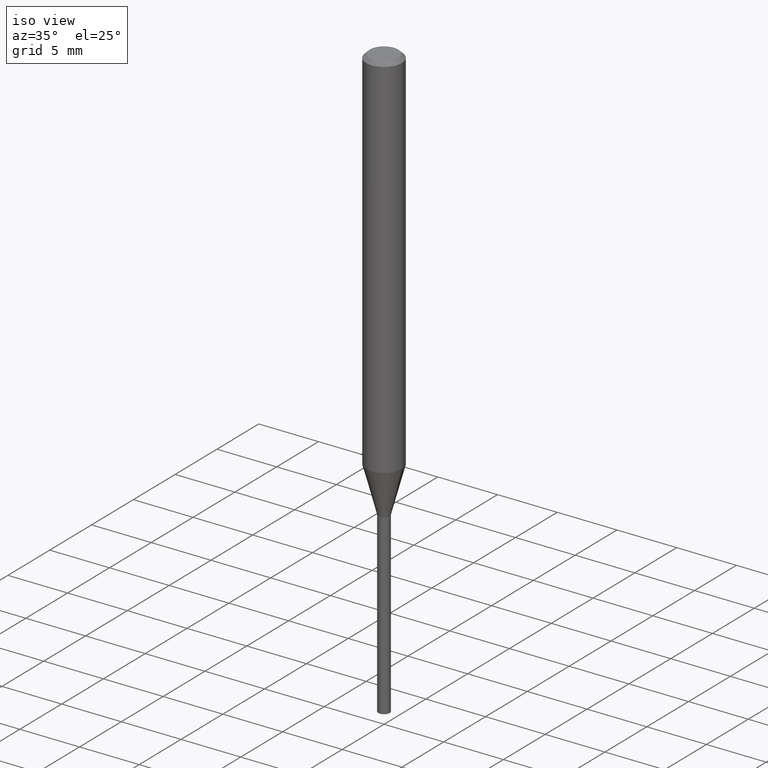
[diagram: clean part render]
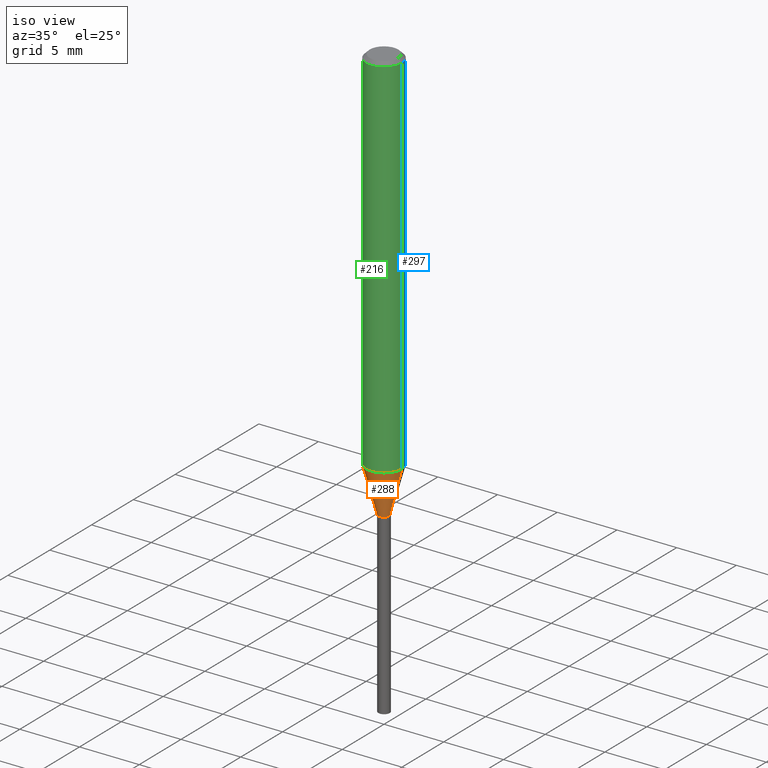
[diagram: same view with three faces highlighted in distinct colors, each labeled with its STEP entity id]
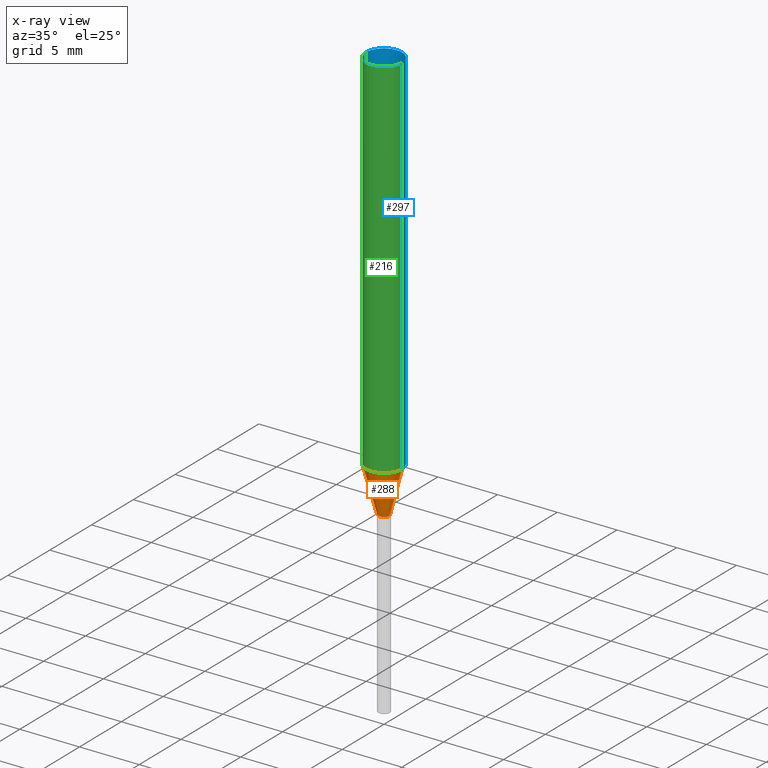
[diagram: x-ray of the same camera — body ghosted, the three highlighted faces saturated]
A machine part, iso view with three faces highlighted in distinct colors.
The next image is the same camera in x-ray (body ghosted, the three faces saturated) — at least one of them is partly hidden behind the body in this view.
Their STEP definitions:

[orange] entity #288 — the highlighted conical surface has half-angle 15 deg.
#4 = AXIS2_PLACEMENT_3D ( 'NONE', #37, #148, #307 ) ;
#14 = ORIENTED_EDGE ( 'NONE', *, *, #304, .F. ) ;
#27 = CIRCLE ( 'NONE', #308, 0.05905000000000014404 ) ;
#33 = EDGE_CURVE ( 'NONE', #54, #144, #468, .T. ) ;
#37 = CARTESIAN_POINT ( 'NONE',  ( 3.355916842727862365E-29, -4.791359841294448810E-15, -1.372300000000000075 ) ) ;
#54 = VERTEX_POINT ( 'NONE', #171 ) ;
#67 = CIRCLE ( 'NONE', #401, 0.01870000000000003604 ) ;
#80 = DIRECTION ( 'NONE',  ( 1.000000000000000000, -6.982962677686261977E-15, 0.000000000000000000 ) ) ;
#85 = LINE ( 'NONE', #239, #375 ) ;
#89 = DIRECTION ( 'NONE',  ( -2.445468806185136597E-29, 3.491481338843145583E-15, 1.000000000000000000 ) ) ;
#95 = ORIENTED_EDGE ( 'NONE', *, *, #342, .F. ) ;
#117 = CARTESIAN_POINT ( 'NONE',  ( 0.01870000000000003604, -4.921941243367182799E-15, -1.372300000000000075 ) ) ;
#144 = VERTEX_POINT ( 'NONE', #362 ) ;
#148 = DIRECTION ( 'NONE',  ( -2.445468806185136597E-29, 3.491481338843145583E-15, 1.000000000000000000 ) ) ;
#171 = CARTESIAN_POINT ( 'NONE',  ( 0.01870000000000003604, -4.921941243367182799E-15, -1.372300000000000075 ) ) ;
#191 = DIRECTION ( 'NONE',  ( -2.445468806185136597E-29, 3.491481338843145583E-15, 1.000000000000000000 ) ) ;
#212 = ORIENTED_EDGE ( 'NONE', *, *, #33, .T. ) ;
#239 = CARTESIAN_POINT ( 'NONE',  ( -0.01870000000000003604, -4.658488349707310510E-15, -1.372300000000000075 ) ) ;
#263 = FACE_OUTER_BOUND ( 'NONE', #312, .T. ) ;
#271 = CARTESIAN_POINT ( 'NONE',  ( -0.01870000000000003604, -4.667391627121360572E-15, -1.372300000000000075 ) ) ;
#279 = DIRECTION ( 'NONE',  ( 0.2588190451025213501, 1.565188264969621968E-15, 0.9659258262890682012 ) ) ;
#288 = ADVANCED_FACE ( 'NONE', ( #263 ), #314, .T. ) ;
#301 = VERTEX_POINT ( 'NONE', #271 ) ;
#304 = EDGE_CURVE ( 'NONE', #301, #354, #85, .T. ) ;
#307 = DIRECTION ( 'NONE',  ( 1.000000000000000000, -6.982962677686261977E-15, 0.000000000000000000 ) ) ;
#308 = AXIS2_PLACEMENT_3D ( 'NONE', #429, #191, #384 ) ;
#312 = EDGE_LOOP ( 'NONE', ( #14, #485, #212, #95 ) ) ;
#314 = CONICAL_SURFACE ( 'NONE', #4, 0.01870000000000003604, 0.2617993877991500740 ) ;
#339 = CARTESIAN_POINT ( 'NONE',  ( 3.355916842727862365E-29, -4.791359841294448810E-15, -1.372300000000000075 ) ) ;
#342 = EDGE_CURVE ( 'NONE', #354, #144, #27, .T. ) ;
#345 = EDGE_CURVE ( 'NONE', #301, #54, #67, .T. ) ;
#354 = VERTEX_POINT ( 'NONE', #391 ) ;
#362 = CARTESIAN_POINT ( 'NONE',  ( 0.05905000000000014404, -4.677927722389590125E-15, -1.221711749914595746 ) ) ;
#375 = VECTOR ( 'NONE', #393, 39.37007874015747433 ) ;
#384 = DIRECTION ( 'NONE',  ( 1.000000000000000000, -6.982962677686272233E-15, 0.000000000000000000 ) ) ;
#391 = CARTESIAN_POINT ( 'NONE',  ( -0.05905000000000014404, -3.846008290805875712E-15, -1.221711749914595746 ) ) ;
#393 = DIRECTION ( 'NONE',  ( -0.2588190451025213501, 5.211531920934551042E-15, 0.9659258262890682012 ) ) ;
#401 = AXIS2_PLACEMENT_3D ( 'NONE', #339, #89, #80 ) ;
#429 = CARTESIAN_POINT ( 'NONE',  ( 2.987657974566000511E-29, -4.265583776272215205E-15, -1.221711749914595746 ) ) ;
#449 = VECTOR ( 'NONE', #279, 39.37007874015747433 ) ;
#468 = LINE ( 'NONE', #117, #449 ) ;
#485 = ORIENTED_EDGE ( 'NONE', *, *, #345, .T. ) ;

[blue] entity #297 — the highlighted cylindrical surface (edge-blend (fillet) strip) has radius 1.4999 mm, axis along (-0, 0, 1).
#2 = VERTEX_POINT ( 'NONE', #244 ) ;
#5 = DIRECTION ( 'NONE',  ( -2.445468806185136877E-29, 3.491481338843145188E-15, 1.000000000000000000 ) ) ;
#11 = ORIENTED_EDGE ( 'NONE', *, *, #390, .F. ) ;
#15 = CIRCLE ( 'NONE', #467, 0.05905000000000000526 ) ;
#57 = ORIENTED_EDGE ( 'NONE', *, *, #92, .T. ) ;
#59 = DIRECTION ( 'NONE',  ( -2.445468806185136597E-29, 3.491481338843145583E-15, 1.000000000000000000 ) ) ;
#62 = VECTOR ( 'NONE', #425, 39.37007874015748143 ) ;
#90 = LINE ( 'NONE', #315, #62 ) ;
#92 = EDGE_CURVE ( 'NONE', #354, #2, #90, .T. ) ;
#93 = ORIENTED_EDGE ( 'NONE', *, *, #162, .F. ) ;
#100 = AXIS2_PLACEMENT_3D ( 'NONE', #232, #309, #350 ) ;
#109 = FACE_OUTER_BOUND ( 'NONE', #344, .T. ) ;
#122 = DIRECTION ( 'NONE',  ( -2.445468806185136597E-29, 3.491481338843145583E-15, 1.000000000000000000 ) ) ;
#144 = VERTEX_POINT ( 'NONE', #362 ) ;
#162 = EDGE_CURVE ( 'NONE', #355, #2, #15, .T. ) ;
#232 = CARTESIAN_POINT ( 'NONE',  ( 2.987657974566000511E-29, -4.265583776272215205E-15, -1.221711749914595746 ) ) ;
#233 = AXIS2_PLACEMENT_3D ( 'NONE', #472, #122, #277 ) ;
#242 = CIRCLE ( 'NONE', #100, 0.05905000000000014404 ) ;
#243 = CARTESIAN_POINT ( 'NONE',  ( 0.05905000000000000526, -4.535783407291119586E-16, -0.01181000000000007738 ) ) ;
#244 = CARTESIAN_POINT ( 'NONE',  ( -0.05905000000000000526, -1.733833599975635790E-15, -0.01181000000000007738 ) ) ;
#269 = CYLINDRICAL_SURFACE ( 'NONE', #233, 0.05905000000000007465 ) ;
#277 = DIRECTION ( 'NONE',  ( 1.000000000000000000, -6.982962677686266711E-15, 4.876176775795936353E-29 ) ) ;
#290 = CARTESIAN_POINT ( 'NONE',  ( 2.888098660104665518E-31, -4.123439461173782112E-17, -0.01181000000000007738 ) ) ;
#297 = ADVANCED_FACE ( 'NONE', ( #109 ), #269, .T. ) ;
#305 = EDGE_CURVE ( 'NONE', #144, #354, #242, .T. ) ;
#309 = DIRECTION ( 'NONE',  ( -2.445468806185136597E-29, 3.491481338843145583E-15, 1.000000000000000000 ) ) ;
#315 = CARTESIAN_POINT ( 'NONE',  ( -0.05905000000000007465, 4.195754854663396902E-16, -2.904631170795525395E-30 ) ) ;
#337 = CARTESIAN_POINT ( 'NONE',  ( 0.05905000000000007465, -4.123439461173745750E-16, 2.879382386107504074E-30 ) ) ;
#344 = EDGE_LOOP ( 'NONE', ( #438, #57, #93, #11 ) ) ;
#350 = DIRECTION ( 'NONE',  ( 1.000000000000000000, -6.982962677686272233E-15, 0.000000000000000000 ) ) ;
#354 = VERTEX_POINT ( 'NONE', #391 ) ;
#355 = VERTEX_POINT ( 'NONE', #243 ) ;
#357 = DIRECTION ( 'NONE',  ( 1.000000000000000000, -6.982962677686267499E-15, 0.000000000000000000 ) ) ;
#362 = CARTESIAN_POINT ( 'NONE',  ( 0.05905000000000014404, -4.677927722389590125E-15, -1.221711749914595746 ) ) ;
#390 = EDGE_CURVE ( 'NONE', #144, #355, #397, .T. ) ;
#391 = CARTESIAN_POINT ( 'NONE',  ( -0.05905000000000014404, -3.846008290805875712E-15, -1.221711749914595746 ) ) ;
#397 = LINE ( 'NONE', #337, #430 ) ;
#425 = DIRECTION ( 'NONE',  ( -2.445468806185136877E-29, 3.491481338843145188E-15, 1.000000000000000000 ) ) ;
#430 = VECTOR ( 'NONE', #5, 39.37007874015748143 ) ;
#438 = ORIENTED_EDGE ( 'NONE', *, *, #305, .T. ) ;
#467 = AXIS2_PLACEMENT_3D ( 'NONE', #290, #59, #357 ) ;
#472 = CARTESIAN_POINT ( 'NONE',  ( 0.000000000000000000, 0.000000000000000000, 0.000000000000000000 ) ) ;

[green] entity #216 — the highlighted cylindrical surface (edge-blend (fillet) strip) has radius 1.4999 mm, axis along (-0, 0, 1).
#2 = VERTEX_POINT ( 'NONE', #244 ) ;
#5 = DIRECTION ( 'NONE',  ( -2.445468806185136877E-29, 3.491481338843145188E-15, 1.000000000000000000 ) ) ;
#27 = CIRCLE ( 'NONE', #308, 0.05905000000000014404 ) ;
#39 = ORIENTED_EDGE ( 'NONE', *, *, #471, .F. ) ;
#44 = ORIENTED_EDGE ( 'NONE', *, *, #92, .F. ) ;
#58 = DIRECTION ( 'NONE',  ( 1.000000000000000000, -6.982962677686267499E-15, 0.000000000000000000 ) ) ;
#62 = VECTOR ( 'NONE', #425, 39.37007874015748143 ) ;
#66 = CIRCLE ( 'NONE', #480, 0.05905000000000000526 ) ;
#90 = LINE ( 'NONE', #315, #62 ) ;
#92 = EDGE_CURVE ( 'NONE', #354, #2, #90, .T. ) ;
#126 = ORIENTED_EDGE ( 'NONE', *, *, #342, .T. ) ;
#144 = VERTEX_POINT ( 'NONE', #362 ) ;
#176 = EDGE_LOOP ( 'NONE', ( #44, #126, #373, #39 ) ) ;
#182 = DIRECTION ( 'NONE',  ( -2.445468806185136597E-29, 3.491481338843145583E-15, 1.000000000000000000 ) ) ;
#191 = DIRECTION ( 'NONE',  ( -2.445468806185136597E-29, 3.491481338843145583E-15, 1.000000000000000000 ) ) ;
#216 = ADVANCED_FACE ( 'NONE', ( #257 ), #229, .T. ) ;
#229 = CYLINDRICAL_SURFACE ( 'NONE', #432, 0.05905000000000007465 ) ;
#243 = CARTESIAN_POINT ( 'NONE',  ( 0.05905000000000000526, -4.535783407291119586E-16, -0.01181000000000007738 ) ) ;
#244 = CARTESIAN_POINT ( 'NONE',  ( -0.05905000000000000526, -1.733833599975635790E-15, -0.01181000000000007738 ) ) ;
#245 = CARTESIAN_POINT ( 'NONE',  ( 2.888098660104665518E-31, -4.123439461173782112E-17, -0.01181000000000007738 ) ) ;
#247 = DIRECTION ( 'NONE',  ( -2.445468806185136597E-29, 3.491481338843145583E-15, 1.000000000000000000 ) ) ;
#257 = FACE_OUTER_BOUND ( 'NONE', #176, .T. ) ;
#308 = AXIS2_PLACEMENT_3D ( 'NONE', #429, #191, #384 ) ;
#315 = CARTESIAN_POINT ( 'NONE',  ( -0.05905000000000007465, 4.195754854663396902E-16, -2.904631170795525395E-30 ) ) ;
#334 = CARTESIAN_POINT ( 'NONE',  ( 0.000000000000000000, 0.000000000000000000, 0.000000000000000000 ) ) ;
#337 = CARTESIAN_POINT ( 'NONE',  ( 0.05905000000000007465, -4.123439461173745750E-16, 2.879382386107504074E-30 ) ) ;
#342 = EDGE_CURVE ( 'NONE', #354, #144, #27, .T. ) ;
#354 = VERTEX_POINT ( 'NONE', #391 ) ;
#355 = VERTEX_POINT ( 'NONE', #243 ) ;
#362 = CARTESIAN_POINT ( 'NONE',  ( 0.05905000000000014404, -4.677927722389590125E-15, -1.221711749914595746 ) ) ;
#373 = ORIENTED_EDGE ( 'NONE', *, *, #390, .T. ) ;
#384 = DIRECTION ( 'NONE',  ( 1.000000000000000000, -6.982962677686272233E-15, 0.000000000000000000 ) ) ;
#390 = EDGE_CURVE ( 'NONE', #144, #355, #397, .T. ) ;
#391 = CARTESIAN_POINT ( 'NONE',  ( -0.05905000000000014404, -3.846008290805875712E-15, -1.221711749914595746 ) ) ;
#397 = LINE ( 'NONE', #337, #430 ) ;
#425 = DIRECTION ( 'NONE',  ( -2.445468806185136877E-29, 3.491481338843145188E-15, 1.000000000000000000 ) ) ;
#429 = CARTESIAN_POINT ( 'NONE',  ( 2.987657974566000511E-29, -4.265583776272215205E-15, -1.221711749914595746 ) ) ;
#430 = VECTOR ( 'NONE', #5, 39.37007874015748143 ) ;
#432 = AXIS2_PLACEMENT_3D ( 'NONE', #334, #182, #486 ) ;
#471 = EDGE_CURVE ( 'NONE', #2, #355, #66, .T. ) ;
#480 = AXIS2_PLACEMENT_3D ( 'NONE', #245, #247, #58 ) ;
#486 = DIRECTION ( 'NONE',  ( 1.000000000000000000, -6.982962677686266711E-15, 4.876176775795936353E-29 ) ) ;